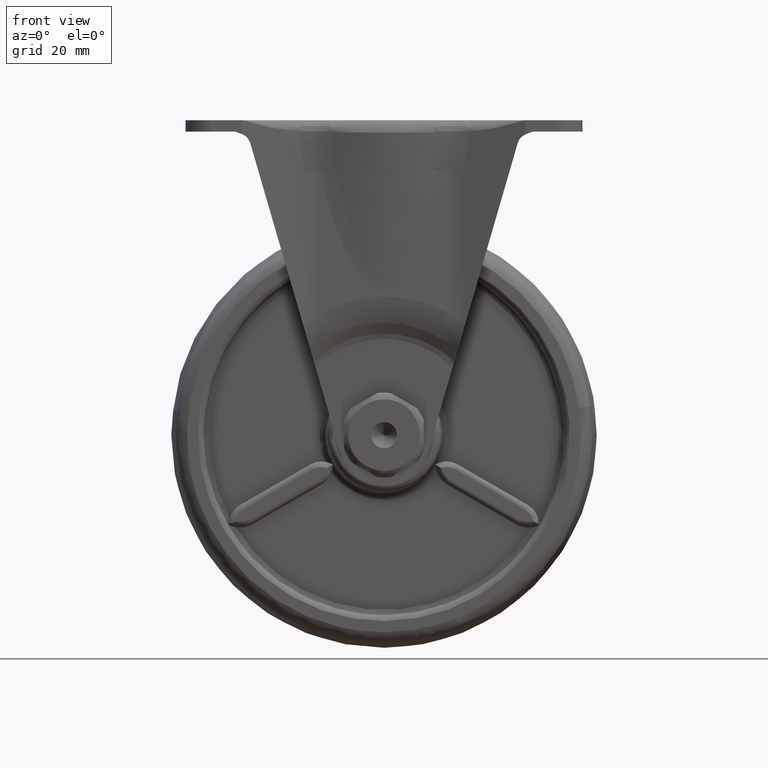
[diagram: clean part render]
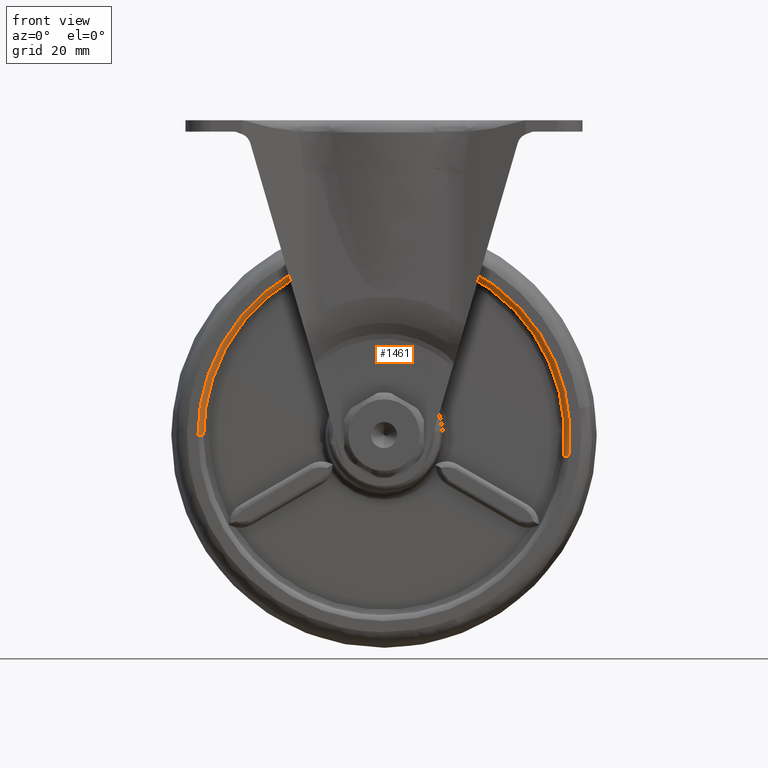
[diagram: same view with one face highlighted and labeled with its STEP entity id]
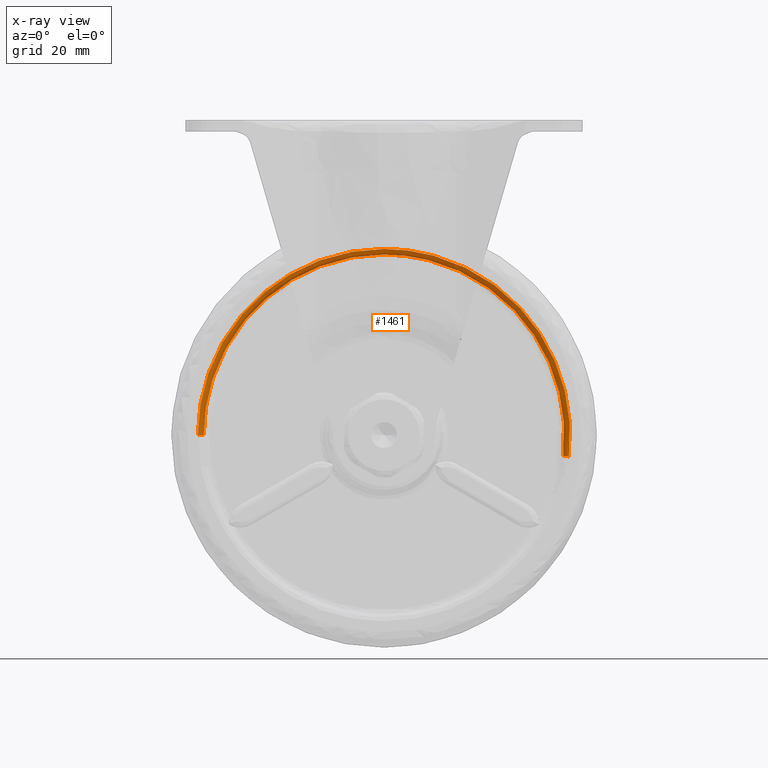
[diagram: x-ray of the same camera — body ghosted, the highlighted face saturated]
A machine part, front view. The second image highlights one B-rep face of the part: STEP entity #1461.
The next image is the same camera in x-ray: the body ghosted, the highlighted face saturated — about 0% of this face is hidden behind the body in this view.
In plain terms, the highlighted face is a freeform B-spline surface patch.
Its self-contained STEP definition (entity closure, byte-faithful):
#333=CARTESIAN_POINT('',(31.587309120051248,-11.500000580003841,-3.671762377163041));
#334=VERTEX_POINT('',#333);
#348=CARTESIAN_POINT('',(0.0,-11.500000000000000,31.799999000000000));
#349=VERTEX_POINT('',#348);
#350=CARTESIAN_POINT('',(31.587309120051241,-11.500000580003839,-3.671762377163041));
#351=CARTESIAN_POINT('',(31.799999000000003,-11.499999999999998,-1.842041307413204));
#352=CARTESIAN_POINT('',(31.799999000000000,-11.500000000000000,1.911231E-015));
#353=CARTESIAN_POINT('',(31.799999000000014,-11.500000000000000,31.799999000000014));
#354=CARTESIAN_POINT('',(0.0,-11.500000000000000,31.799999000000000));
#362=(BOUNDED_CURVE()B_SPLINE_CURVE(2,(#350,#351,#352,#353,#354),.UNSPECIFIED.,.F.,.U.)B_SPLINE_CURVE_WITH_KNOTS((3,2,3),(0.229999999999719,0.250000000000000,0.500000000000000),.UNSPECIFIED.)CURVE()GEOMETRIC_REPRESENTATION_ITEM()RATIONAL_B_SPLINE_CURVE((0.956886118190106,0.976568542494594,1.0,0.707106781186548,1.0))REPRESENTATION_ITEM(''));
#363=EDGE_CURVE('',#334,#349,#362,.T.);
#365=CARTESIAN_POINT('',(-31.799999000000330,-11.500000580001981,3.551187E-015));
#366=VERTEX_POINT('',#365);
#367=CARTESIAN_POINT('',(0.0,-11.500000000000000,31.799999000000000));
#368=CARTESIAN_POINT('',(-31.799998999999854,-11.500000000000000,31.799999000000010));
#369=CARTESIAN_POINT('',(-31.799999000000334,-11.500000580001982,3.551187E-015));
#377=(BOUNDED_CURVE()B_SPLINE_CURVE(2,(#367,#368,#369),.UNSPECIFIED.,.F.,.U.)B_SPLINE_CURVE_WITH_KNOTS((3,3),(0.500000000000000,0.749999999999999),.UNSPECIFIED.)CURVE()GEOMETRIC_REPRESENTATION_ITEM()RATIONAL_B_SPLINE_CURVE((1.0,0.707106781186549,0.999999999999998))REPRESENTATION_ITEM(''));
#378=EDGE_CURVE('',#349,#366,#377,.T.);
#1368=CARTESIAN_POINT('',(32.649508565399486,-12.497592305322160,-3.795230510700610));
#1369=CARTESIAN_POINT('',(32.869350224661368,-12.497592305322151,-1.903982504323823));
#1370=CARTESIAN_POINT('',(32.869350224661360,-12.497592305322158,-6.037802E-015));
#1371=CARTESIAN_POINT('',(32.869350224661375,-12.497592305322151,32.869350224661360));
#1372=CARTESIAN_POINT('',(8.050403E-015,-12.497592305322158,32.869350224661360));
#1373=CARTESIAN_POINT('',(-32.869350224661360,-12.497592305322151,32.869350224661375));
#1374=CARTESIAN_POINT('',(-32.869350224661360,-12.497592305322158,1.006300E-014));
#1375=CARTESIAN_POINT('',(31.510090111479467,-12.577336442433602,-3.662782707631521));
#1376=CARTESIAN_POINT('',(31.722259629428681,-12.577336442433602,-1.837536395433030));
#1377=CARTESIAN_POINT('',(31.722259629428681,-12.577336442433600,-5.827092E-015));
#1378=CARTESIAN_POINT('',(31.722259629428663,-12.577336442433596,31.722259629428663));
#1379=CARTESIAN_POINT('',(7.769456E-015,-12.577336442433600,31.722259629428681));
#1380=CARTESIAN_POINT('',(-31.722259629428663,-12.577336442433596,31.722259629428663));
#1381=CARTESIAN_POINT('',(-31.722259629428681,-12.577336442433600,9.711820E-015));
#1382=CARTESIAN_POINT('',(31.589726953865402,-11.430275746446748,-3.672039820135791));
#1383=CARTESIAN_POINT('',(31.802432697207820,-11.430275746446746,-1.842180482320240));
#1384=CARTESIAN_POINT('',(31.802432697207824,-11.430275746446748,-5.841819E-015));
#1385=CARTESIAN_POINT('',(31.802432697207834,-11.430275746446748,31.802432697207820));
#1386=CARTESIAN_POINT('',(7.789092E-015,-11.430275746446748,31.802432697207824));
#1387=CARTESIAN_POINT('',(-31.802432697207820,-11.430275746446748,31.802432697207834));
#1388=CARTESIAN_POINT('',(-31.802432697207824,-11.430275746446748,9.736365E-015));
#1396=(BOUNDED_SURFACE()B_SPLINE_SURFACE(2,2,((#1368,#1375,#1382),(#1369,#1376,#1383),(#1370,#1377,#1384),(#1371,#1378,#1385),(#1372,#1379,#1386),(#1373,#1380,#1387),(#1374,#1381,#1388)),.UNSPECIFIED.,.F.,.F.,.U.)B_SPLINE_SURFACE_WITH_KNOTS((3,2,2,3),(3,3),(0.0,4.356773652875583,58.816496250659092,113.276218848442600),(0.0,1.822371195840745),.UNSPECIFIED.)GEOMETRIC_REPRESENTATION_ITEM()RATIONAL_B_SPLINE_SURFACE(((0.870831904997782,0.569876247281656,0.866008000876766),(0.888744244638877,0.581598161506569,0.883821116536154),(0.910068454623733,0.595552818763237,0.905027202754720),(0.643515575608403,0.421119436702248,0.639950872226155),(0.910068454623733,0.595552818763237,0.905027202754720),(0.643515575608403,0.421119436702248,0.639950872226155),(0.910068454623733,0.595552818763237,0.905027202754720)))REPRESENTATION_ITEM('')SURFACE());
#1397=ORIENTED_EDGE('',*,*,#363,.F.);
#1398=CARTESIAN_POINT('',(32.580620762308421,-12.500000000000000,-3.787226614586689));
#1399=VERTEX_POINT('',#1398);
#1400=CARTESIAN_POINT('',(32.580620762308421,-12.500000000000005,-3.787226614586689));
#1401=CARTESIAN_POINT('',(31.587310272302414,-12.500000008768135,-3.671762511076043));
#1402=CARTESIAN_POINT('',(31.587309120051248,-11.500000580003839,-3.671762377163041));
#1410=(BOUNDED_CURVE()B_SPLINE_CURVE(2,(#1400,#1401,#1402),.UNSPECIFIED.,.F.,.U.)B_SPLINE_CURVE_WITH_KNOTS((3,3),(-1.726807308469927,-0.285996512797929),.UNSPECIFIED.)CURVE()GEOMETRIC_REPRESENTATION_ITEM()RATIONAL_B_SPLINE_CURVE((0.844728328353768,0.595760788874906,0.840342384734549))REPRESENTATION_ITEM(''));
#1411=EDGE_CURVE('',#1399,#334,#1410,.T.);
#1412=ORIENTED_EDGE('',*,*,#1411,.F.);
#1413=CARTESIAN_POINT('',(0.0,-12.500000000000000,32.799999000000007));
#1414=VERTEX_POINT('',#1413);
#1415=CARTESIAN_POINT('',(32.580620762308421,-12.499999999999998,-3.787226614586688));
#1416=CARTESIAN_POINT('',(32.799999000000007,-12.500000000000000,-1.899967144178241));
#1417=CARTESIAN_POINT('',(32.799999000000007,-12.500000000000000,1.911231E-015));
#1418=CARTESIAN_POINT('',(32.799999000000000,-12.500000000000000,32.799999000000000));
#1419=CARTESIAN_POINT('',(0.0,-12.500000000000000,32.799999000000007));
#1427=(BOUNDED_CURVE()B_SPLINE_CURVE(2,(#1415,#1416,#1417,#1418,#1419),.UNSPECIFIED.,.F.,.U.)B_SPLINE_CURVE_WITH_KNOTS((3,2,3),(0.229999999920910,0.250000000000000,0.500000000000000),.UNSPECIFIED.)CURVE()GEOMETRIC_REPRESENTATION_ITEM()RATIONAL_B_SPLINE_CURVE((0.956886118034991,0.976568542402264,1.0,0.707106781186548,1.0))REPRESENTATION_ITEM(''));
#1428=EDGE_CURVE('',#1399,#1414,#1427,.T.);
#1429=ORIENTED_EDGE('',*,*,#1428,.T.);
#1430=CARTESIAN_POINT('',(-32.799998998076980,-12.500000000000000,3.551252E-015));
#1431=VERTEX_POINT('',#1430);
#1432=CARTESIAN_POINT('',(0.0,-12.500000000000000,32.799999000000007));
#1433=CARTESIAN_POINT('',(-32.799998999999843,-12.500000000000000,32.799999000000014));
#1434=CARTESIAN_POINT('',(-32.799998998076987,-12.500000000000005,3.551252E-015));
#1442=(BOUNDED_CURVE()B_SPLINE_CURVE(2,(#1432,#1433,#1434),.UNSPECIFIED.,.F.,.U.)B_SPLINE_CURVE_WITH_KNOTS((3,3),(0.500000000000000,0.749999999999999),.UNSPECIFIED.)CURVE()GEOMETRIC_REPRESENTATION_ITEM()RATIONAL_B_SPLINE_CURVE((1.0,0.707106781186549,0.999999999999998))REPRESENTATION_ITEM(''));
#1443=EDGE_CURVE('',#1414,#1431,#1442,.T.);
#1444=ORIENTED_EDGE('',*,*,#1443,.T.);
#1445=CARTESIAN_POINT('',(-32.799998998076973,-12.499999999999998,3.551252E-015));
#1446=CARTESIAN_POINT('',(-31.800000160003290,-12.499999996153958,3.539365E-015));
#1447=CARTESIAN_POINT('',(-31.799999000000330,-11.500000580001991,3.551187E-015));
#1455=(BOUNDED_CURVE()B_SPLINE_CURVE(2,(#1445,#1446,#1447),.UNSPECIFIED.,.F.,.U.)B_SPLINE_CURVE_WITH_KNOTS((3,3),(-1.726807295584996,-0.285996512794161),.UNSPECIFIED.)CURVE()GEOMETRIC_REPRESENTATION_ITEM()RATIONAL_B_SPLINE_CURVE((0.882788774800163,0.622603651297616,0.878205220831085))REPRESENTATION_ITEM(''));
#1456=EDGE_CURVE('',#1431,#366,#1455,.T.);
#1457=ORIENTED_EDGE('',*,*,#1456,.T.);
#1458=ORIENTED_EDGE('',*,*,#378,.F.);
#1459=EDGE_LOOP('',(#1397,#1412,#1429,#1444,#1457,#1458));
#1460=FACE_OUTER_BOUND('',#1459,.T.);
#1461=ADVANCED_FACE('',(#1460),#1396,.T.);